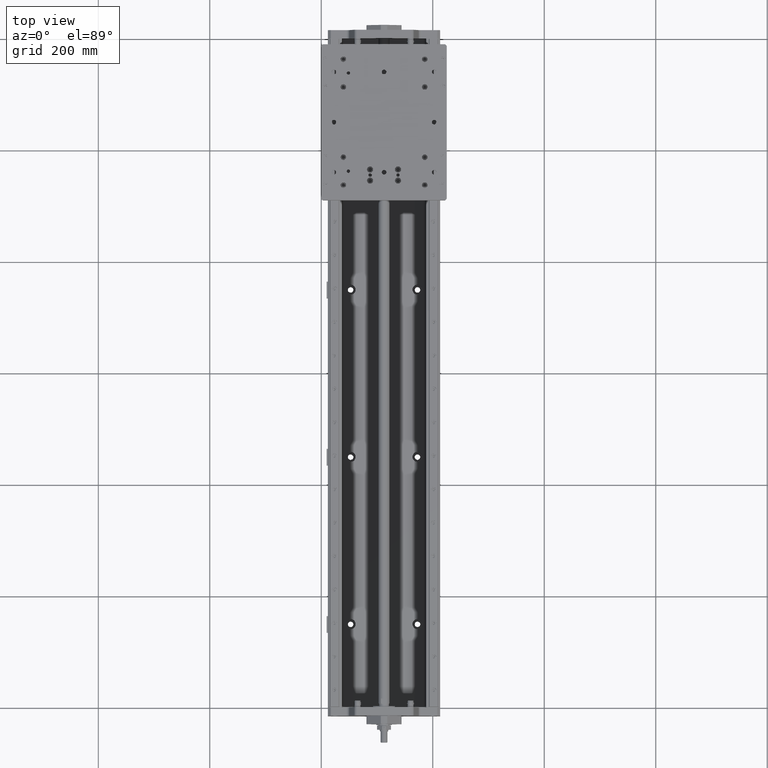
[diagram: clean part render]
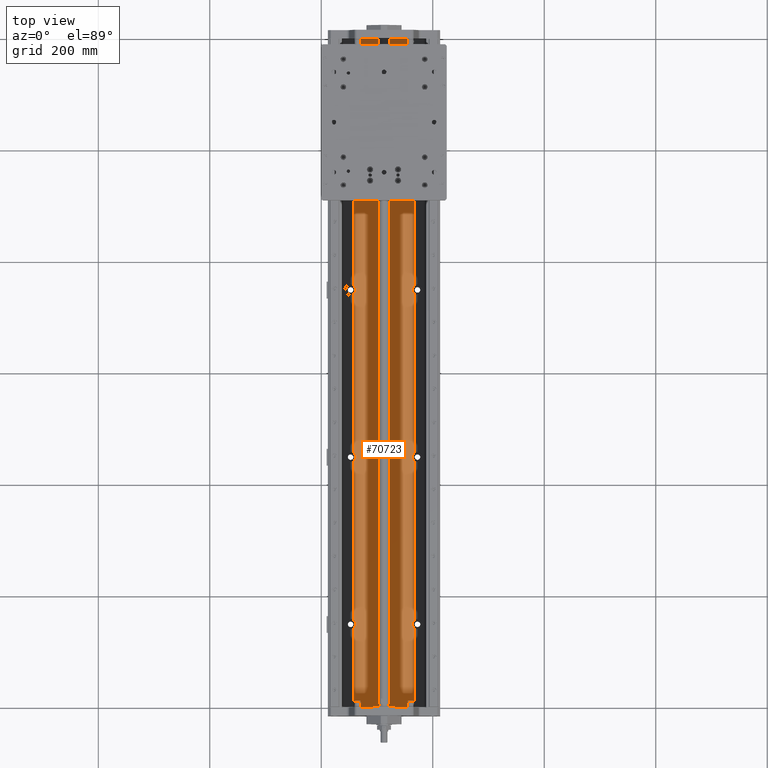
[diagram: same view with one face highlighted and labeled with its STEP entity id]
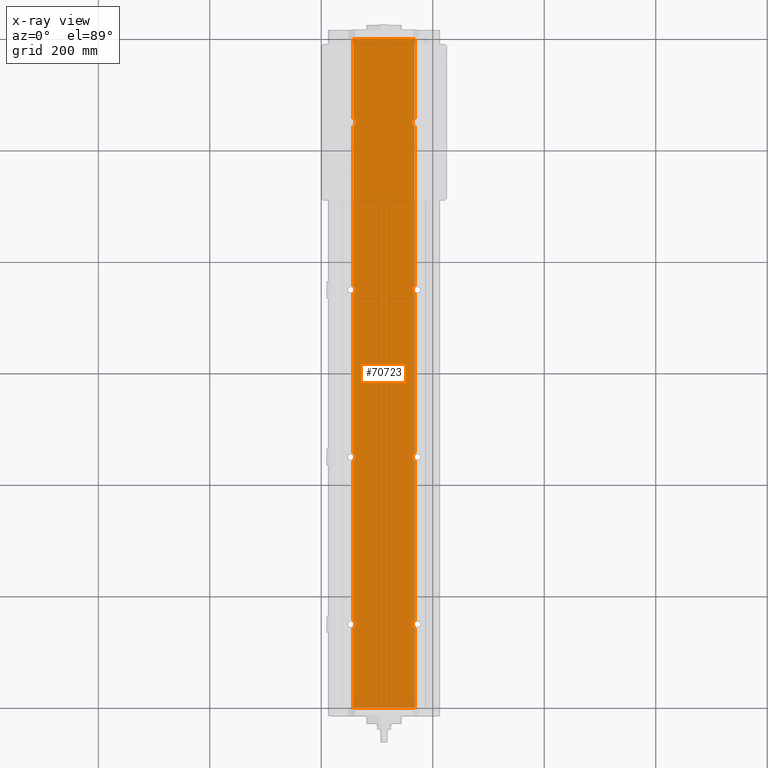
[diagram: x-ray of the same camera — body ghosted, the highlighted face saturated]
A machine part, top view. The second image highlights one B-rep face of the part: STEP entity #70723.
The next image is the same camera in x-ray: the body ghosted, the highlighted face saturated — about 0% of this face is hidden behind the body in this view.
In plain terms, the highlighted planar face has unit normal (0, 0, -1).
Its self-contained STEP definition (entity closure, byte-faithful):
#69948=CARTESIAN_POINT('',(57.819316876853037,557.259811840786480,27.400000000000059));
#69949=VERTEX_POINT('',#69948);
#69950=CARTESIAN_POINT('',(57.819316876853037,542.740188159213400,27.400000000000059));
#69951=VERTEX_POINT('',#69950);
#69952=CARTESIAN_POINT('',(52.499999999999986,550.0,27.400000000000052));
#69953=DIRECTION('',(0.0,0.0,-1.0));
#69954=DIRECTION('',(1.0,0.0,0.0));
#69955=AXIS2_PLACEMENT_3D('',#69952,#69953,#69954);
#69956=CIRCLE('',#69955,9.0);
#69957=EDGE_CURVE('',#69949,#69951,#69956,.T.);
#70063=CARTESIAN_POINT('',(167.180683123146960,557.259811840786820,27.400000000000084));
#70064=VERTEX_POINT('',#70063);
#70074=CARTESIAN_POINT('',(167.180683123146960,542.740188159213180,27.400000000000084));
#70075=VERTEX_POINT('',#70074);
#70076=CARTESIAN_POINT('',(172.499999999999970,550.0,27.400000000000073));
#70077=DIRECTION('',(0.0,0.0,-1.0));
#70078=DIRECTION('',(1.0,0.0,0.0));
#70079=AXIS2_PLACEMENT_3D('',#70076,#70077,#70078);
#70080=CIRCLE('',#70079,9.0);
#70081=EDGE_CURVE('',#70075,#70064,#70080,.T.);
#70122=CARTESIAN_POINT('',(57.819316876853037,257.259811840786480,27.400000000000059));
#70123=VERTEX_POINT('',#70122);
#70124=CARTESIAN_POINT('',(57.819316876853037,242.740188159213520,27.400000000000059));
#70125=VERTEX_POINT('',#70124);
#70126=CARTESIAN_POINT('',(52.499999999999986,250.0,27.400000000000052));
#70127=DIRECTION('',(0.0,0.0,-1.0));
#70128=DIRECTION('',(1.0,0.0,0.0));
#70129=AXIS2_PLACEMENT_3D('',#70126,#70127,#70128);
#70130=CIRCLE('',#70129,9.0);
#70131=EDGE_CURVE('',#70123,#70125,#70130,.T.);
#70237=CARTESIAN_POINT('',(167.180683123146960,257.259811840787050,27.400000000000084));
#70238=VERTEX_POINT('',#70237);
#70248=CARTESIAN_POINT('',(167.180683123146960,242.740188159212950,27.400000000000084));
#70249=VERTEX_POINT('',#70248);
#70250=CARTESIAN_POINT('',(172.499999999999970,250.0,27.400000000000073));
#70251=DIRECTION('',(0.0,0.0,-1.0));
#70252=DIRECTION('',(1.0,0.0,0.0));
#70253=AXIS2_PLACEMENT_3D('',#70250,#70251,#70252);
#70254=CIRCLE('',#70253,9.0);
#70255=EDGE_CURVE('',#70249,#70238,#70254,.T.);
#70305=CARTESIAN_POINT('',(57.819316876853037,-42.740188159213659,27.400000000000059));
#70306=VERTEX_POINT('',#70305);
#70314=CARTESIAN_POINT('',(57.819316876853037,-42.740188159213659,27.400000000000059));
#70315=DIRECTION('',(0.0,1.0,0.0));
#70316=VECTOR('',#70315,285.480376318427150);
#70317=LINE('',#70314,#70316);
#70318=EDGE_CURVE('',#70306,#70125,#70317,.T.);
#70336=CARTESIAN_POINT('',(57.819316876853037,257.259811840786480,27.400000000000059));
#70337=DIRECTION('',(0.0,1.0,0.0));
#70338=VECTOR('',#70337,285.480376318426920);
#70339=LINE('',#70336,#70338);
#70340=EDGE_CURVE('',#70123,#69951,#70339,.T.);
#70351=CARTESIAN_POINT('',(57.819316876853037,842.740188159213180,27.400000000000059));
#70352=VERTEX_POINT('',#70351);
#70353=CARTESIAN_POINT('',(57.819316876853037,557.259811840786480,27.400000000000059));
#70354=DIRECTION('',(0.0,1.0,0.0));
#70355=VECTOR('',#70354,285.480376318426690);
#70356=LINE('',#70353,#70355);
#70357=EDGE_CURVE('',#69949,#70352,#70356,.T.);
#70383=CARTESIAN_POINT('',(167.180683123146960,-42.740188159212948,27.400000000000084));
#70384=VERTEX_POINT('',#70383);
#70385=CARTESIAN_POINT('',(167.180683123146960,242.740188159212950,27.400000000000084));
#70386=DIRECTION('',(0.0,-1.0,0.0));
#70387=VECTOR('',#70386,285.480376318425900);
#70388=LINE('',#70385,#70387);
#70389=EDGE_CURVE('',#70249,#70384,#70388,.T.);
#70423=CARTESIAN_POINT('',(167.180683123146960,842.740188159213400,27.400000000000084));
#70424=VERTEX_POINT('',#70423);
#70432=CARTESIAN_POINT('',(167.180683123146960,842.740188159213400,27.400000000000084));
#70433=DIRECTION('',(0.0,-1.0,0.0));
#70434=VECTOR('',#70433,285.480376318426580);
#70435=LINE('',#70432,#70434);
#70436=EDGE_CURVE('',#70424,#70064,#70435,.T.);
#70447=CARTESIAN_POINT('',(167.180683123146960,542.740188159213180,27.400000000000084));
#70448=DIRECTION('',(0.0,-1.0,0.0));
#70449=VECTOR('',#70448,285.480376318426120);
#70450=LINE('',#70447,#70449);
#70451=EDGE_CURVE('',#70075,#70238,#70450,.T.);
#70496=CARTESIAN_POINT('',(167.180683123146960,857.259811840786600,27.400000000000084));
#70497=VERTEX_POINT('',#70496);
#70507=CARTESIAN_POINT('',(172.500000000000140,850.0,27.400000000000073));
#70508=DIRECTION('',(0.0,0.0,-1.0));
#70509=DIRECTION('',(1.0,0.0,0.0));
#70510=AXIS2_PLACEMENT_3D('',#70507,#70508,#70509);
#70511=CIRCLE('',#70510,9.0);
#70512=EDGE_CURVE('',#70424,#70497,#70511,.T.);
#70583=CARTESIAN_POINT('',(57.819316876853037,857.259811840786820,27.400000000000059));
#70584=VERTEX_POINT('',#70583);
#70585=CARTESIAN_POINT('',(52.500000000000099,850.0,27.400000000000052));
#70586=DIRECTION('',(0.0,0.0,-1.0));
#70587=DIRECTION('',(1.0,0.0,0.0));
#70588=AXIS2_PLACEMENT_3D('',#70585,#70586,#70587);
#70589=CIRCLE('',#70588,9.0);
#70590=EDGE_CURVE('',#70584,#70352,#70589,.T.);
#70631=CARTESIAN_POINT('',(167.180683123146960,1000.0,27.400000000000073));
#70632=VERTEX_POINT('',#70631);
#70640=CARTESIAN_POINT('',(167.180683123146960,1000.0,27.400000000000073));
#70641=DIRECTION('',(0.0,-1.0,0.0));
#70642=VECTOR('',#70641,142.740188159213400);
#70643=LINE('',#70640,#70642);
#70644=EDGE_CURVE('',#70632,#70497,#70643,.T.);
#70649=CARTESIAN_POINT('',(187.549999999999950,1002.500000000000000,27.400000000000084));
#70650=DIRECTION('',(0.0,0.0,-1.0));
#70651=DIRECTION('',(0.0,1.0,0.0));
#70652=AXIS2_PLACEMENT_3D('',#70649,#70650,#70651);
#70653=PLANE('',#70652);
#70654=ORIENTED_EDGE('',*,*,#69957,.T.);
#70655=ORIENTED_EDGE('',*,*,#70340,.F.);
#70656=ORIENTED_EDGE('',*,*,#70131,.T.);
#70657=ORIENTED_EDGE('',*,*,#70318,.F.);
#70658=CARTESIAN_POINT('',(57.819316876853037,-57.259811840786483,27.400000000000059));
#70659=VERTEX_POINT('',#70658);
#70660=CARTESIAN_POINT('',(52.499999999999986,-50.0,27.400000000000052));
#70661=DIRECTION('',(0.0,0.0,-1.0));
#70662=DIRECTION('',(1.0,0.0,0.0));
#70663=AXIS2_PLACEMENT_3D('',#70660,#70661,#70662);
#70664=CIRCLE('',#70663,9.0);
#70665=EDGE_CURVE('',#70306,#70659,#70664,.T.);
#70666=ORIENTED_EDGE('',*,*,#70665,.T.);
#70667=CARTESIAN_POINT('',(57.819316876853037,-200.0,27.400000000000059));
#70668=VERTEX_POINT('',#70667);
#70669=CARTESIAN_POINT('',(57.819316876853037,-200.0,27.400000000000059));
#70670=DIRECTION('',(0.0,1.0,0.0));
#70671=VECTOR('',#70670,142.740188159213520);
#70672=LINE('',#70669,#70671);
#70673=EDGE_CURVE('',#70668,#70659,#70672,.T.);
#70674=ORIENTED_EDGE('',*,*,#70673,.F.);
#70675=CARTESIAN_POINT('',(167.180683123146960,-200.0,27.400000000000073));
#70676=VERTEX_POINT('',#70675);
#70677=CARTESIAN_POINT('',(57.819316876853037,-200.0,27.400000000000059));
#70678=DIRECTION('',(1.0,0.0,0.0));
#70679=VECTOR('',#70678,109.361366246293930);
#70680=LINE('',#70677,#70679);
#70681=EDGE_CURVE('',#70668,#70676,#70680,.T.);
#70682=ORIENTED_EDGE('',*,*,#70681,.T.);
#70683=CARTESIAN_POINT('',(167.180683123146960,-57.259811840787052,27.400000000000084));
#70684=VERTEX_POINT('',#70683);
#70685=CARTESIAN_POINT('',(167.180683123146960,-57.259811840787052,27.400000000000084));
#70686=DIRECTION('',(0.0,-1.0,0.0));
#70687=VECTOR('',#70686,142.740188159212950);
#70688=LINE('',#70685,#70687);
#70689=EDGE_CURVE('',#70684,#70676,#70688,.T.);
#70690=ORIENTED_EDGE('',*,*,#70689,.F.);
#70691=CARTESIAN_POINT('',(172.499999999999970,-50.0,27.400000000000073));
#70692=DIRECTION('',(0.0,0.0,-1.0));
#70693=DIRECTION('',(1.0,0.0,0.0));
#70694=AXIS2_PLACEMENT_3D('',#70691,#70692,#70693);
#70695=CIRCLE('',#70694,9.0);
#70696=EDGE_CURVE('',#70684,#70384,#70695,.T.);
#70697=ORIENTED_EDGE('',*,*,#70696,.T.);
#70698=ORIENTED_EDGE('',*,*,#70389,.F.);
#70699=ORIENTED_EDGE('',*,*,#70255,.T.);
#70700=ORIENTED_EDGE('',*,*,#70451,.F.);
#70701=ORIENTED_EDGE('',*,*,#70081,.T.);
#70702=ORIENTED_EDGE('',*,*,#70436,.F.);
#70703=ORIENTED_EDGE('',*,*,#70512,.T.);
#70704=ORIENTED_EDGE('',*,*,#70644,.F.);
#70705=CARTESIAN_POINT('',(57.819316876853037,1000.0,27.400000000000059));
#70706=VERTEX_POINT('',#70705);
#70707=CARTESIAN_POINT('',(167.180683123146960,1000.0,27.400000000000073));
#70708=DIRECTION('',(-1.0,0.0,0.0));
#70709=VECTOR('',#70708,109.361366246293930);
#70710=LINE('',#70707,#70709);
#70711=EDGE_CURVE('',#70632,#70706,#70710,.T.);
#70712=ORIENTED_EDGE('',*,*,#70711,.T.);
#70713=CARTESIAN_POINT('',(57.819316876853037,857.259811840786820,27.400000000000059));
#70714=DIRECTION('',(0.0,1.0,0.0));
#70715=VECTOR('',#70714,142.740188159213180);
#70716=LINE('',#70713,#70715);
#70717=EDGE_CURVE('',#70584,#70706,#70716,.T.);
#70718=ORIENTED_EDGE('',*,*,#70717,.F.);
#70719=ORIENTED_EDGE('',*,*,#70590,.T.);
#70720=ORIENTED_EDGE('',*,*,#70357,.F.);
#70721=EDGE_LOOP('',(#70654,#70655,#70656,#70657,#70666,#70674,#70682,#70690,#70697,#70698,#70699,#70700,#70701,#70702,#70703,#70704,#70712,#70718,#70719,#70720));
#70722=FACE_OUTER_BOUND('',#70721,.T.);
#70723=ADVANCED_FACE('',(#70722),#70653,.F.);